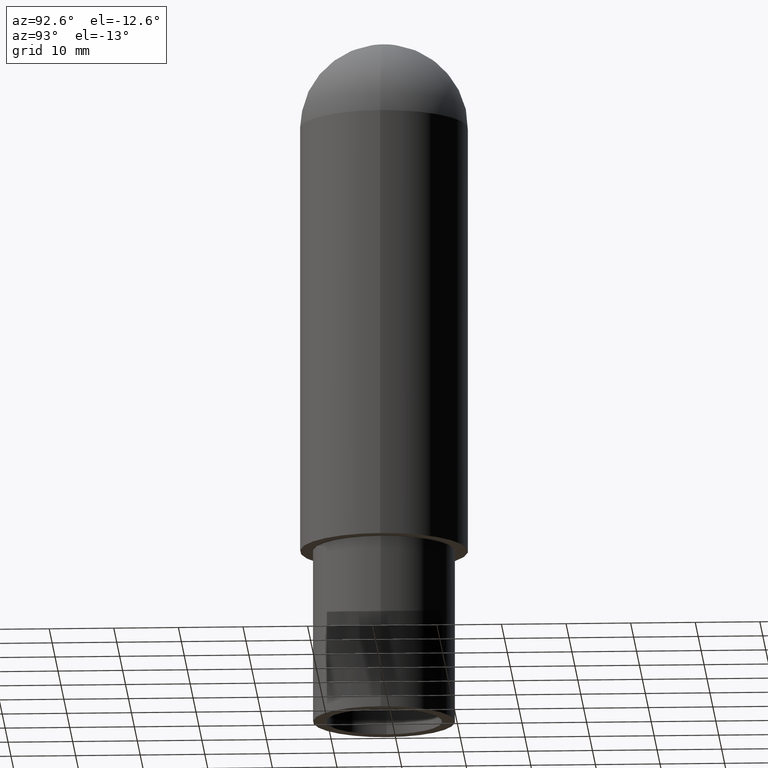
[diagram: clean part render]
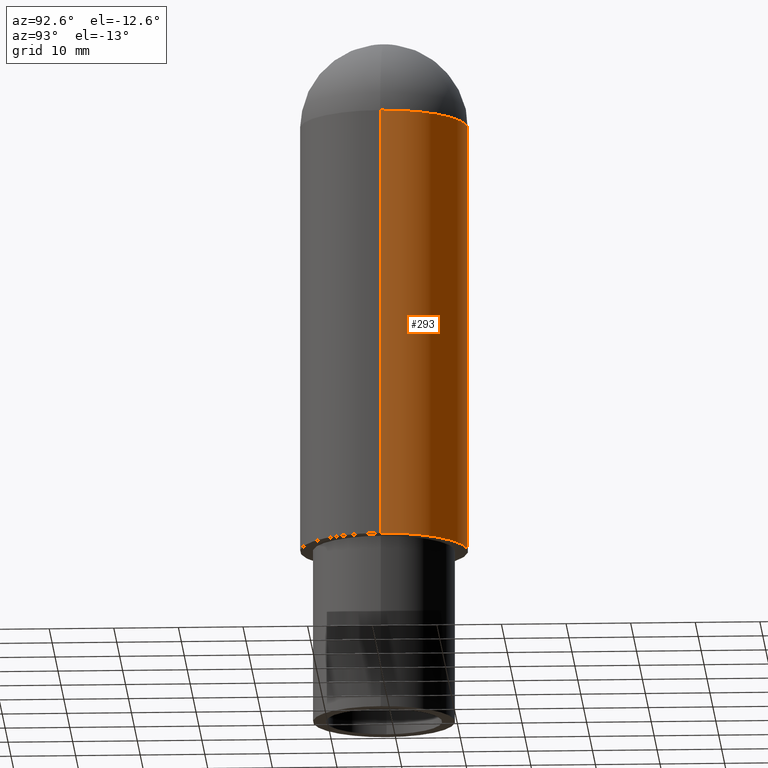
[diagram: same view with one face highlighted and labeled with its STEP entity id]
A machine part, auxiliary view. The second image highlights one B-rep face of the part: STEP entity #293.
In plain terms, the highlighted cylindrical surface (partial cylindrical patch) has radius 13 mm, axis along (0, 0, 1).
Its self-contained STEP definition (entity closure, byte-faithful):
#207=CARTESIAN_POINT('',(-8.716946060098080,-1.613904443833868,27.0));
#208=VERTEX_POINT('',#207);
#209=CARTESIAN_POINT('',(-8.716946060098078,-1.613904443833868,94.0));
#210=VERTEX_POINT('',#209);
#211=CARTESIAN_POINT('',(-8.716946060098080,-1.613904443833868,27.0));
#212=DIRECTION('',(0.0,0.0,1.0));
#213=VECTOR('',#212,67.0);
#214=LINE('',#211,#213);
#215=EDGE_CURVE('',#208,#210,#214,.T.);
#217=CARTESIAN_POINT('',(17.283053939901922,-1.613904443833868,27.0));
#218=VERTEX_POINT('',#217);
#226=CARTESIAN_POINT('',(17.283053939901919,-1.613904443833868,94.0));
#227=VERTEX_POINT('',#226);
#228=CARTESIAN_POINT('',(17.283053939901919,-1.613904443833868,94.0));
#229=DIRECTION('',(0.0,0.0,-1.0));
#230=VECTOR('',#229,67.0);
#231=LINE('',#228,#230);
#232=EDGE_CURVE('',#227,#218,#231,.T.);
#256=CARTESIAN_POINT('',(4.283053939901921,-1.613904443833869,94.0));
#257=DIRECTION('',(0.0,0.0,1.0));
#258=DIRECTION('',(-1.0,0.0,0.0));
#259=AXIS2_PLACEMENT_3D('',#256,#257,#258);
#260=CIRCLE('',#259,12.999999999999998);
#261=EDGE_CURVE('',#227,#210,#260,.T.);
#276=CARTESIAN_POINT('',(4.283053939901921,-1.613904443833869,27.0));
#277=DIRECTION('',(0.0,0.0,1.0));
#278=DIRECTION('',(-1.0,0.0,0.0));
#279=AXIS2_PLACEMENT_3D('',#276,#277,#278);
#280=CYLINDRICAL_SURFACE('',#279,13.0);
#281=ORIENTED_EDGE('',*,*,#215,.T.);
#282=ORIENTED_EDGE('',*,*,#261,.F.);
#283=ORIENTED_EDGE('',*,*,#232,.T.);
#284=CARTESIAN_POINT('',(4.283053939901921,-1.613904443833869,27.0));
#285=DIRECTION('',(0.0,0.0,-1.0));
#286=DIRECTION('',(-1.0,0.0,0.0));
#287=AXIS2_PLACEMENT_3D('',#284,#285,#286);
#288=CIRCLE('',#287,13.0);
#289=EDGE_CURVE('',#208,#218,#288,.T.);
#290=ORIENTED_EDGE('',*,*,#289,.F.);
#291=EDGE_LOOP('',(#281,#282,#283,#290));
#292=FACE_OUTER_BOUND('',#291,.T.);
#293=ADVANCED_FACE('',(#292),#280,.T.);